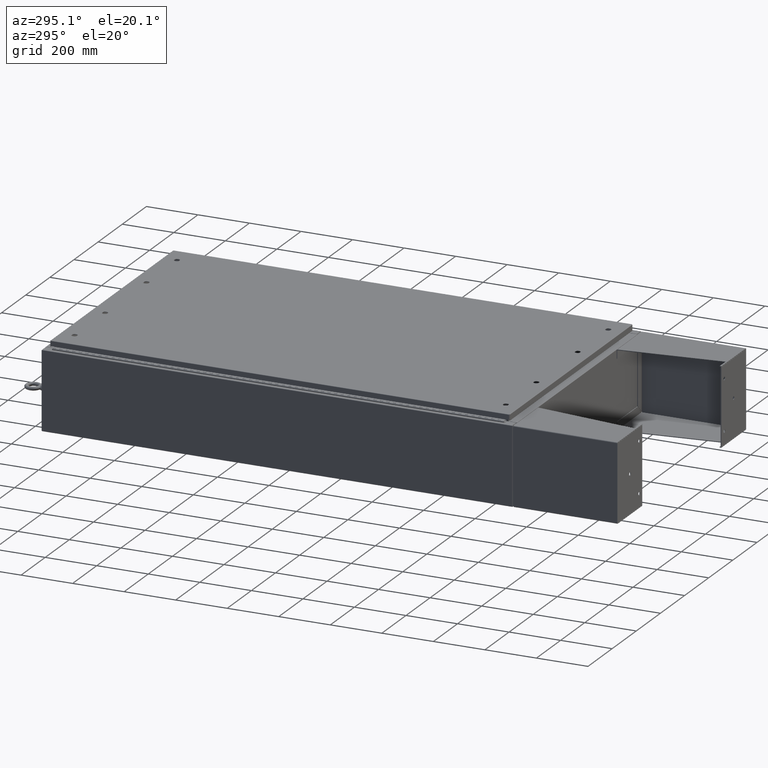
[diagram: clean part render]
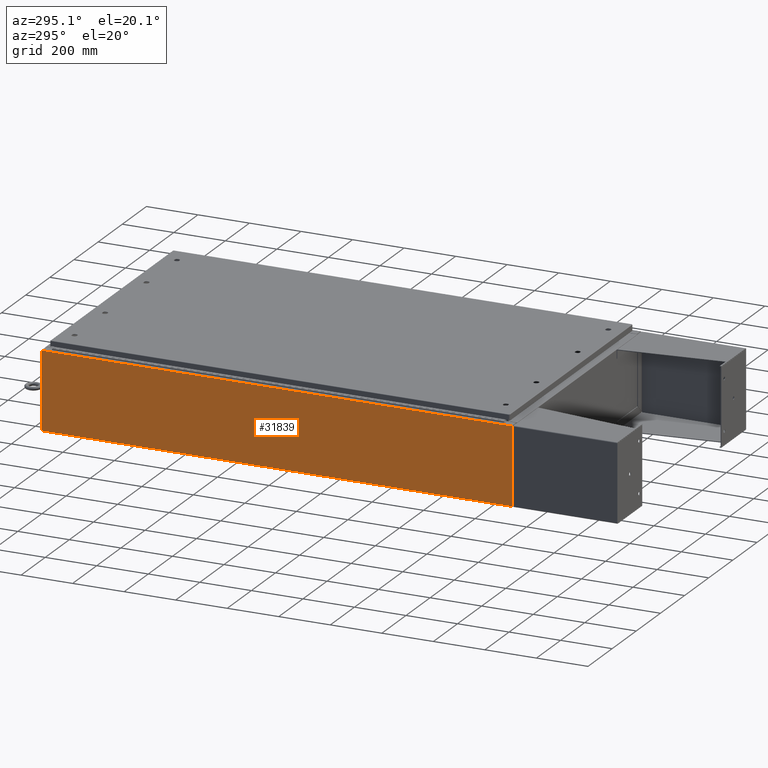
[diagram: same view with one face highlighted and labeled with its STEP entity id]
A machine part, auxiliary view. The second image highlights one B-rep face of the part: STEP entity #31839.
In plain terms, the highlighted planar face has unit normal (1, 0, 0).
Its self-contained STEP definition (entity closure, byte-faithful):
#1654 = VERTEX_POINT ( 'NONE', #37834 ) ;
#7477 = VERTEX_POINT ( 'NONE', #35560 ) ;
#7524 = CARTESIAN_POINT ( 'NONE',  ( -20.99999999999999600, 35.92530000000000000, -7.723170125390783800E-014 ) ) ;
#10034 = VERTEX_POINT ( 'NONE', #20507 ) ;
#10373 = CARTESIAN_POINT ( 'NONE',  ( -20.99999999999999600, 0.0000000000000000000, -7.723170125390783800E-014 ) ) ;
#11507 = VECTOR ( 'NONE', #32310, 39.37007874015748100 ) ;
#11539 = EDGE_CURVE ( 'NONE', #7477, #1654, #55225, .T. ) ;
#13107 = EDGE_CURVE ( 'NONE', #14666, #10034, #42125, .T. ) ;
#14022 = VECTOR ( 'NONE', #45875, 39.37007874015748100 ) ;
#14666 = VERTEX_POINT ( 'NONE', #45555 ) ;
#15953 = PLANE ( 'NONE',  #48892 ) ;
#16942 = ORIENTED_EDGE ( 'NONE', *, *, #31490, .T. ) ;
#19576 = CARTESIAN_POINT ( 'NONE',  ( -20.99999999999999600, 35.92530000000000000, 0.01299999999999764400 ) ) ;
#20507 = CARTESIAN_POINT ( 'NONE',  ( -20.99999999999999600, 35.92530000000000000, 0.01299999999999764900 ) ) ;
#23277 = DIRECTION ( 'NONE',  ( -3.665280361804584200E-015, -4.379057701015054300E-047, 1.000000000000000000 ) ) ;
#26800 = DIRECTION ( 'NONE',  ( 3.665280361804584200E-015, 0.0000000000000000000, -1.000000000000000000 ) ) ;
#28402 = FACE_OUTER_BOUND ( 'NONE', #68731, .T. ) ;
#30309 = ORIENTED_EDGE ( 'NONE', *, *, #11539, .T. ) ;
#31298 = CARTESIAN_POINT ( 'NONE',  ( -21.00000000000003900, -35.92530000000000000, 11.83760000000000000 ) ) ;
#31490 = EDGE_CURVE ( 'NONE', #14666, #7477, #44851, .T. ) ;
#31518 = EDGE_CURVE ( 'NONE', #1654, #10034, #56000, .T. ) ;
#31839 = ADVANCED_FACE ( 'NONE', ( #28402 ), #15953, .F. ) ;
#32310 = DIRECTION ( 'NONE',  ( 0.0000000000000000000, 1.000000000000000000, 0.0000000000000000000 ) ) ;
#34457 = CARTESIAN_POINT ( 'NONE',  ( -20.99999999999999600, -35.92529999999999300, -7.723170125390783800E-014 ) ) ;
#35560 = CARTESIAN_POINT ( 'NONE',  ( -21.00000000000003900, -35.92530000000000000, 11.83760000000000000 ) ) ;
#37834 = CARTESIAN_POINT ( 'NONE',  ( -21.00000000000003900, 35.92530000000000000, 11.83760000000000000 ) ) ;
#39110 = DIRECTION ( 'NONE',  ( -7.921611184256002800E-046, 1.000000000000000000, -2.941710864917871900E-060 ) ) ;
#42125 = LINE ( 'NONE', #19576, #69621 ) ;
#44851 = LINE ( 'NONE', #34457, #57723 ) ;
#45555 = CARTESIAN_POINT ( 'NONE',  ( -20.99999999999999600, -35.92530000000000000, 0.01299999999999764400 ) ) ;
#45790 = ORIENTED_EDGE ( 'NONE', *, *, #31518, .T. ) ;
#45875 = DIRECTION ( 'NONE',  ( 3.665280361804584200E-015, -2.229735323599324900E-032, -1.000000000000000000 ) ) ;
#48892 = AXIS2_PLACEMENT_3D ( 'NONE', #10373, #59750, #26800 ) ;
#53629 = ORIENTED_EDGE ( 'NONE', *, *, #13107, .F. ) ;
#55225 = LINE ( 'NONE', #31298, #11507 ) ;
#56000 = LINE ( 'NONE', #7524, #14022 ) ;
#57723 = VECTOR ( 'NONE', #23277, 39.37007874015748100 ) ;
#59750 = DIRECTION ( 'NONE',  ( 1.000000000000000000, 7.921611184256002800E-046, 3.665280361804584200E-015 ) ) ;
#68731 = EDGE_LOOP ( 'NONE', ( #30309, #45790, #53629, #16942 ) ) ;
#69621 = VECTOR ( 'NONE', #39110, 39.37007874015748100 ) ;